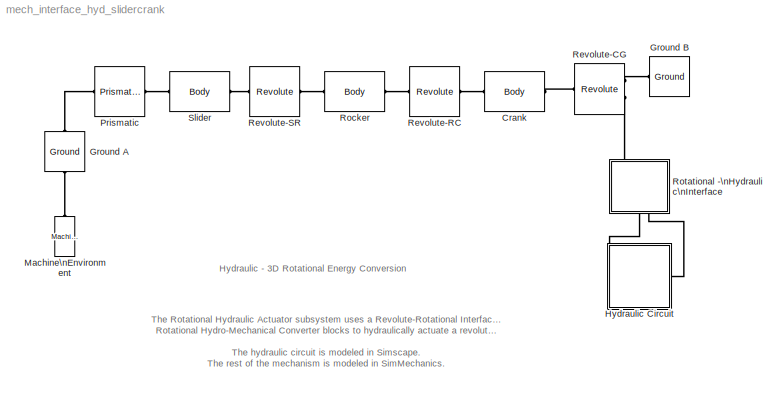
MODEL mech_interface_hyd_slidercrank
KIND model
CONFIG PostLoadFcn = hws = get_param(bdroot, 'modelworkspace');\n\nhws.assignin('sl_a', 0.5);\nhws.assignin('sl_b', 0.25);\nhws.assignin('sl_c', 0.25);\nhws.assignin('M_sl', 0.5);\nhws.evalin('I_sl = [1/3*M_sl*(sl_b^2 + sl_c^2) 0 0;   0 1/3*M_sl*(sl_a^2 + sl_c^2) 0;   0 0 1/3*M_sl*(sl_a^2 + sl_b^2)];')\n\nhws.assignin('rk_a', 0.5);\nhws.assignin('rk_b', 0.05);\nhws.assignin('rk_c', 0.05);\nhws.assignin('M_rk', 0.5);\n...<+384ch>
BLOCK [Reference] Crank  REF=mblibv1/Bodies/Body
  AttachedToCS = 1
  BodyColor = [0.5 0.5 0.5]
  CG = Left$CG$[cr_a 0 0]/2$CS1$CS1$ft$[0 0 0]$Euler X-Y-Z$deg$CS1$false
  CGPos = [cr_a 0 0]/2
  CGRot = [0 0 0]
  CS0Pos = []
  CS0Rot = []
  CS10Pos = []
  CS10Rot = []
  CS11Pos = []
  CS11Rot = []
  CS12Pos = []
  CS12Rot = []
  CS13Pos = []
  CS13Rot = []
  CS14Pos = []
  CS14Rot = []
  CS15Pos = []
  CS15Rot = []
  CS16Pos = []
  CS16Rot = []
  CS17Pos = []
  CS17Rot = []
  CS18Pos = []
  CS18Rot = []
  CS19Pos = []
  CS19Rot = []
  CS1Pos = [0 0 0]
  CS1Rot = [0 0 -pi/2]
  CS20Pos = []
  CS20Rot = []
  CS2Pos = [cr_a 0 0]
  CS2Rot = [0 0 0]
  CS3Pos = []
  CS3Rot = []
  CS4Pos = []
  CS4Rot = []
  CS5Pos = []
  CS5Rot = []
  CS6Pos = []
  CS6Rot = []
  CS7Pos = []
  CS7Rot = []
  CS8Pos = []
  CS8Rot = []
  CS9Pos = []
  CS9Rot = []
  ClassName = Body
  Density = 1
  DensityUnits = kg/m^3
  DensityUse = false
  DialogClass = MechanicalBodyBlock
  DialogController = MECH.DynMechDlgSource
  GraphicsMode = 1
  GraphicsObj = []
  Inertia = I_cr
  InertiaUnits = lbm*ft^2
  LConnTagsString = CS1
  LeftPortType = workingframe
  Mass = M_cr
  MassUnits = lbm
  PhysicalDomain = mechanical
  Ports = [0, 0, 0, 0, 0, 1, 1]
  RConnTagsString = CS2
  RightPortType = workingframe
  Shape = Cylinder
  ShapeDims = [1 1]
  ShapeUnits = m
  ShapeUse = false
  SourceBlock = mblibv1/Bodies/Body
  SourceType = Body
  SubClassName = Unknown
  WorkingFrames = Left$CS1$[0 0 0]$Adjoining$Adjoining$ft$[0 0 -pi/2]$Euler X-Y-Z$rad$Adjoining$true#Right$CS2$[cr_a 0 0]$CS1$CS1$ft$[0 0 0]$Euler X-Y-Z$deg$CS1$true
BLOCK [Reference] Ground A  REF=mblibv1/Bodies/Ground
  ClassName = Ground
  CoordPosition = [0 0 0]
  CoordPositionUnits = m
  DialogClass = GroundBlock
  DialogController = MECH.DynMechDlgSource
  FunctionWithSeparateData = off
  LeftPortType = env
  MachineId = [0 0]
  PhysicalDomain = Mechanical
  Ports = [0, 0, 0, 0, 0, 1, 1]
  RTWMemSecDataConstants = Inherit from model
  RTWMemSecDataInternal = Inherit from model
  RTWMemSecDataParameters = Inherit from model
  RTWMemSecFuncExecute = Inherit from model
  RTWMemSecFuncInitTerm = Inherit from model
  RightPortType = workingframe
  ShowEnvPort = on
  ShowPortLabels = FromPortIcon
  SourceBlock = mblibv1/Bodies/Ground
  SourceType = Ground
  StateVectorMgrId = -1
  SystemSampleTime = -1
  UserData = DataTag1
  UserDataPersistent = on
BLOCK [Reference] Ground B  REF=mblibv1/Bodies/Ground
  ClassName = Ground
  CoordPosition = [Lr*cos(pi/6)+Lc*cos(pi/3)+1/24 0 0]
  CoordPositionUnits = ft
  DialogClass = GroundBlock
  DialogController = MECH.DynMechDlgSource
  FunctionWithSeparateData = off
  LeftPortType = env
  MachineId = [0 0]
  PhysicalDomain = Mechanical
  Ports = [0, 0, 0, 0, 0, 0, 1]
  RTWMemSecDataConstants = Inherit from model
  RTWMemSecDataInternal = Inherit from model
  RTWMemSecDataParameters = Inherit from model
  RTWMemSecFuncExecute = Inherit from model
  RTWMemSecFuncInitTerm = Inherit from model
  RightPortType = workingframe
  ShowEnvPort = off
  ShowPortLabels = FromPortIcon
  SourceBlock = mblibv1/Bodies/Ground
  SourceType = Ground
  StateVectorMgrId = -1
  SystemSampleTime = -1
  UserData = DataTag2
  UserDataPersistent = on
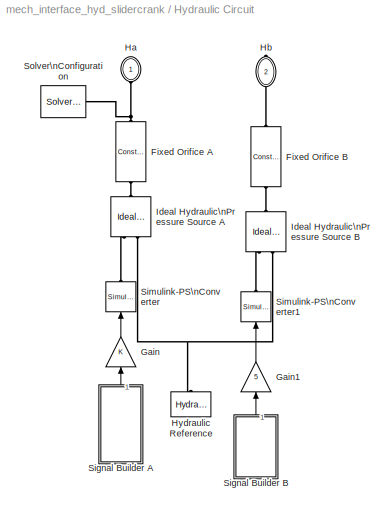
BLOCK [SubSystem] Hydraulic Circuit
  FunctionWithSeparateData = off
  MaskHideContents = off
  MinAlgLoopOccurrences = off
  Opaque = off
  Ports = [0, 0, 0, 0, 0, 1, 1]
  PropExecContextOutsideSubsystem = off
  RTWSystemCode = Auto
  RequestExecContextInheritance = off
BLOCK [Reference] Hydraulic Circuit/Fixed Orifice A  REF=fl_lib/Hydraulic/Hydraulic Elements/Constant Area\nOrifice
  C_d = 0.7
  C_d_unit = 1
  ClassName = orifice_fixed
  DialogController = NetworkEngine.DynNeDlgSource
  FunctionWithSeparateData = off
  LocalVarDescs = |Flow rate through the orifice (m^3/s)|Pressure drop across the orifice (Pa)|Reynolds number|Power (W)
  LocalVarLogging = [0 0 0 0]
  LocalVarNames = |flow_rate|pr_drop|Re|power
  Ports = [0, 0, 0, 0, 0, 1, 1]
  RTWMemSecDataConstants = Inherit from model
  RTWMemSecDataInternal = Inherit from model
  RTWMemSecDataParameters = Inherit from model
  RTWMemSecFuncExecute = Inherit from model
  RTWMemSecFuncInitTerm = Inherit from model
  Re_cr = 12
  Re_cr_unit = 1
  SchemaVersion = 1
  ShowPortLabels = FromPortIcon
  SourceBlock = fl_lib/Hydraulic/Hydraulic Elements/Constant Area\nOrifice
  SourceType = Constant Area\nOrifice
  SystemSampleTime = -1
  Tag = Factory Generic
  area = 1e-04
  area_unit = m^2
  flow_rate_Log = off
  power_Log = off
  pr_drop_Log = off
BLOCK [Reference] Hydraulic Circuit/Fixed Orifice B  REF=fl_lib/Hydraulic/Hydraulic Elements/Constant Area\nOrifice
  C_d = 0.7
  C_d_unit = 1
  ClassName = orifice_fixed
  DialogController = NetworkEngine.DynNeDlgSource
  FunctionWithSeparateData = off
  LocalVarDescs = |Flow rate through the orifice (m^3/s)|Pressure drop across the orifice (Pa)|Reynolds number|Power (W)
  LocalVarLogging = [0 0 0 0]
  LocalVarNames = |flow_rate|pr_drop|Re|power
  Ports = [0, 0, 0, 0, 0, 1, 1]
  RTWMemSecDataConstants = Inherit from model
  RTWMemSecDataInternal = Inherit from model
  RTWMemSecDataParameters = Inherit from model
  RTWMemSecFuncExecute = Inherit from model
  RTWMemSecFuncInitTerm = Inherit from model
  Re_cr = 12
  Re_cr_unit = 1
  SchemaVersion = 1
  ShowPortLabels = FromPortIcon
  SourceBlock = fl_lib/Hydraulic/Hydraulic Elements/Constant Area\nOrifice
  SourceType = Constant Area\nOrifice
  SystemSampleTime = -1
  Tag = Factory Generic
  area = 1e-04
  area_unit = m^2
  flow_rate_Log = off
  power_Log = off
  pr_drop_Log = off
BLOCK [Gain] Hydraulic Circuit/Gain
  OutDataType = sfix(16)
  OutDataTypeMode = Inherit via internal rule
  OutDataTypeStr = Inherit: Inherit via internal rule
  OutScaling = 2^0
  ParamDataTypeStr = Inherit: Inherit via internal rule
  ParameterDataType = sfix(16)
  ParameterDataTypeMode = Inherit via internal rule
  ParameterScaling = 2^0
  SaturateOnIntegerOverflow = off
BLOCK [Gain] Hydraulic Circuit/Gain1
  Gain = 5
  OutDataType = sfix(16)
  OutDataTypeMode = Inherit via internal rule
  OutDataTypeStr = Inherit: Inherit via internal rule
  OutScaling = 2^0
  ParamDataTypeStr = Inherit: Inherit via internal rule
  ParameterDataType = sfix(16)
  ParameterDataTypeMode = Inherit via internal rule
  ParameterScaling = 2^0
  SaturateOnIntegerOverflow = off
BLOCK [PMIOPort] Hydraulic Circuit/Ha
  Port = 1
  Side = Left
BLOCK [PMIOPort] Hydraulic Circuit/Hb
  Port = 2
  Side = Right
BLOCK [Reference] Hydraulic Circuit/Hydraulic Reference  REF=fl_lib/Hydraulic/Hydraulic Elements/Hydraulic Reference
  ClassName = hydro_reference
  DialogController = NetworkEngine.DynNeDlgSource
  FunctionWithSeparateData = off
  LocalVarLogging = []
  Ports = [0, 0, 0, 0, 0, 1]
  RTWMemSecDataConstants = Inherit from model
  RTWMemSecDataInternal = Inherit from model
  RTWMemSecDataParameters = Inherit from model
  RTWMemSecFuncExecute = Inherit from model
  RTWMemSecFuncInitTerm = Inherit from model
  SchemaVersion = 1
  ShowPortLabels = FromPortIcon
  SourceBlock = fl_lib/Hydraulic/Hydraulic Elements/Hydraulic Reference
  SourceType = Hydraulic Reference
  SystemSampleTime = -1
  Tag = Factory Generic
BLOCK [Reference] Hydraulic Circuit/Ideal Hydraulic\nPressure Source A  REF=fl_lib/Hydraulic/Hydraulic Sensors\nand Sources/Ideal Hydraulic\nPressure Source
  ClassName = pressure_src
  DialogController = NetworkEngine.DynNeDlgSource
  FunctionWithSeparateData = off
  LocalVarDescs = |Flow rate through the source (m^3/s)|Pressure differential across the source (Pa)|Source power (W)
  LocalVarLogging = [0 0 0]
  LocalVarNames = |flow_rate|pr_differential|power
  Ports = [0, 0, 0, 0, 0, 1, 2]
  RTWMemSecDataConstants = Inherit from model
  RTWMemSecDataInternal = Inherit from model
  RTWMemSecDataParameters = Inherit from model
  RTWMemSecFuncExecute = Inherit from model
  RTWMemSecFuncInitTerm = Inherit from model
  SchemaVersion = 1
  ShowPortLabels = FromPortIcon
  SourceBlock = fl_lib/Hydraulic/Hydraulic Sensors\nand Sources/Ideal Hydraulic\nPressure Source
  SourceType = Ideal Hydraulic\nPressure Source
  SystemSampleTime = -1
  Tag = Factory Generic
  flow_rate_Log = off
  power_Log = off
  pr_differential_Log = off
BLOCK [Reference] Hydraulic Circuit/Ideal Hydraulic\nPressure Source B  REF=fl_lib/Hydraulic/Hydraulic Sensors\nand Sources/Ideal Hydraulic\nPressure Source
  ClassName = pressure_src
  DialogController = NetworkEngine.DynNeDlgSource
  FunctionWithSeparateData = off
  LocalVarDescs = |Flow rate through the source (m^3/s)|Pressure differential across the source (Pa)|Source power (W)
  LocalVarLogging = [0 0 0]
  LocalVarNames = |flow_rate|pr_differential|power
  Ports = [0, 0, 0, 0, 0, 1, 2]
  RTWMemSecDataConstants = Inherit from model
  RTWMemSecDataInternal = Inherit from model
  RTWMemSecDataParameters = Inherit from model
  RTWMemSecFuncExecute = Inherit from model
  RTWMemSecFuncInitTerm = Inherit from model
  SchemaVersion = 1
  ShowPortLabels = FromPortIcon
  SourceBlock = fl_lib/Hydraulic/Hydraulic Sensors\nand Sources/Ideal Hydraulic\nPressure Source
  SourceType = Ideal Hydraulic\nPressure Source
  SystemSampleTime = -1
  Tag = Factory Generic
  flow_rate_Log = off
  power_Log = off
  pr_differential_Log = off
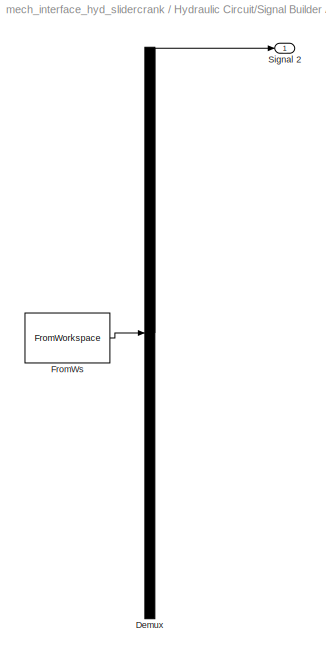
BLOCK [SubSystem] Hydraulic Circuit/Signal Builder A
  ClipboardFcn = sigbuilder_block('clipboard');
  CloseFcn = sigbuilder_block('close');
  CopyFcn = sigbuilder_block('copy');
  DeleteFcn = sigbuilder_block('delete');
  FunctionWithSeparateData = off
  LoadFcn = sigbuilder_block('load');
  MaskDescription = Sigbuilder GUI
  MaskDisplay = plot(0,0,100,100,[10,10,40,40,10],[80,20,20,80,80],[40,10],[50,50], [40,27,10],[65,72,56],[40,25,25,10],[28,28,43,43]);
  MaskHideContents = off
  MaskIconFrame = on
  MaskIconOpaque = off
  MaskIconRotate = port
  MaskIconUnits = autoscale
  MaskInitialization = if ~strcmp(get_param(bdroot(gcbh),'SimulationStatus'),'stopped') tuvar = sigbuilder_block('maskInit'); end
  MaskType = Sigbuilder block
  MinAlgLoopOccurrences = off
  ModelCloseFcn = sigbuilder_block('modelClose');
  NameChangeFcn = sigbuilder_block('namechange');
  Opaque = off
  OpenFcn = sigbuilder_block('open',[160.5 256.5 550.5 399.75 ]);
  Ports = [0, 1]
  PreSaveFcn = sigbuilder_block('preSave');
  PropExecContextOutsideSubsystem = off
  RTWSystemCode = Auto
  RequestExecContextInheritance = off
  StartFcn = sigbuilder_block('start');
  StopFcn = sigbuilder_block('stop');
  Tag = STV Subsys
BLOCK [Demux] Hydraulic Circuit/Signal Builder A/Demux
  Outputs = 1
  Ports = [1, 1]
  Tag = STV Demux
BLOCK [FromWorkspace] Hydraulic Circuit/Signal Builder A/FromWs
  SampleTime = 0
  SigBuilderData = DataTag3
  Tag = STV FromWs
  VariableName = tuvar
  VnvData = DataTag4
  ZeroCross = on
BLOCK [Outport] Hydraulic Circuit/Signal Builder A/Signal 2
  IconDisplay = Port number
  OutDataType = sfix(16)
  OutScaling = 2^0
  Tag = STV Outport
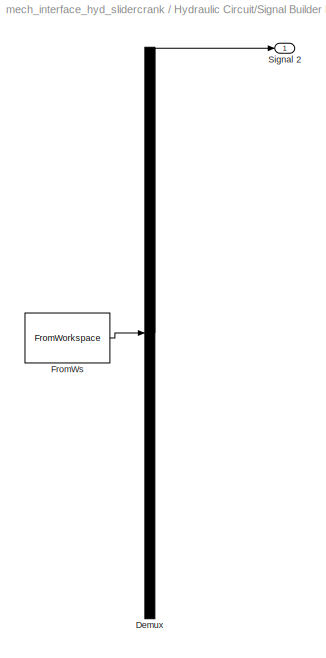
BLOCK [SubSystem] Hydraulic Circuit/Signal Builder B
  ClipboardFcn = sigbuilder_block('clipboard');
  CloseFcn = sigbuilder_block('close');
  CopyFcn = sigbuilder_block('copy');
  DeleteFcn = sigbuilder_block('delete');
  FunctionWithSeparateData = off
  LoadFcn = sigbuilder_block('load');
  MaskDescription = Sigbuilder GUI
  MaskDisplay = plot(0,0,100,100,[10,10,40,40,10],[80,20,20,80,80],[40,10],[50,50], [40,27,10],[65,72,56],[40,25,25,10],[28,28,43,43]);
  MaskHideContents = off
  MaskIconFrame = on
  MaskIconOpaque = off
  MaskIconRotate = port
  MaskIconUnits = autoscale
  MaskInitialization = if ~strcmp(get_param(bdroot(gcbh),'SimulationStatus'),'stopped') tuvar = sigbuilder_block('maskInit'); end
  MaskType = Sigbuilder block
  MinAlgLoopOccurrences = off
  ModelCloseFcn = sigbuilder_block('modelClose');
  NameChangeFcn = sigbuilder_block('namechange');
  Opaque = off
  OpenFcn = sigbuilder_block('open',[405 251.25 550.5 399.75 ]);
  Ports = [0, 1]
  PreSaveFcn = sigbuilder_block('preSave');
  PropExecContextOutsideSubsystem = off
  RTWSystemCode = Auto
  RequestExecContextInheritance = off
  StartFcn = sigbuilder_block('start');
  StopFcn = sigbuilder_block('stop');
  Tag = STV Subsys
BLOCK [Demux] Hydraulic Circuit/Signal Builder B/Demux
  Outputs = 1
  Ports = [1, 1]
  Tag = STV Demux
BLOCK [FromWorkspace] Hydraulic Circuit/Signal Builder B/FromWs
  SampleTime = 0
  SigBuilderData = DataTag5
  Tag = STV FromWs
  VariableName = tuvar
  VnvData = DataTag6
  ZeroCross = on
BLOCK [Outport] Hydraulic Circuit/Signal Builder B/Signal 2
  IconDisplay = Port number
  OutDataType = sfix(16)
  OutScaling = 2^0
  Tag = STV Outport
BLOCK [Reference] Hydraulic Circuit/Simulink-PS\nConverter  REF=nesl_utility/Simulink-PS\nConverter
  AffineConversion = off
  DialogController = NetworkEngine.DynNeUtilDlgSource
  FunctionWithSeparateData = off
  LeftPortType = input
  PhysicalDomain = network_engine_domain
  Ports = [1, 0, 0, 0, 0, 0, 1]
  RTWMemSecDataConstants = Inherit from model
  RTWMemSecDataInternal = Inherit from model
  RTWMemSecDataParameters = Inherit from model
  RTWMemSecFuncExecute = Inherit from model
  RTWMemSecFuncInitTerm = Inherit from model
  RightPortType = output
  ShowPortLabels = none
  SourceBlock = nesl_utility/Simulink-PS\nConverter
  SourceType = Simulink-PS\nConverter
  SubClassName = ps_input
  SystemSampleTime = -1
  Unit = bar
BLOCK [Reference] Hydraulic Circuit/Simulink-PS\nConverter1  REF=nesl_utility/Simulink-PS\nConverter
  AffineConversion = off
  DialogController = NetworkEngine.DynNeUtilDlgSource
  FunctionWithSeparateData = off
  LeftPortType = input
  PhysicalDomain = network_engine_domain
  Ports = [1, 0, 0, 0, 0, 0, 1]
  RTWMemSecDataConstants = Inherit from model
  RTWMemSecDataInternal = Inherit from model
  RTWMemSecDataParameters = Inherit from model
  RTWMemSecFuncExecute = Inherit from model
  RTWMemSecFuncInitTerm = Inherit from model
  RightPortType = output
  ShowPortLabels = none
  SourceBlock = nesl_utility/Simulink-PS\nConverter
  SourceType = Simulink-PS\nConverter
  SubClassName = ps_input
  SystemSampleTime = -1
  Unit = bar
BLOCK [Reference] Hydraulic Circuit/Solver\nConfiguration  REF=nesl_utility/Solver\nConfiguration
  Accelerate = off
  DialogController = NetworkEngine.DynNeUtilDlgSource
  DoDC = off
  DoFixedCost = off
  FunctionWithSeparateData = off
  LeftPortType = input
  LinearAlgebra = Sparse
  MaxModeIter = 2
  MaxNonlinIter = 12
  PhysicalDomain = network_engine_domain
  Ports = [0, 0, 0, 0, 0, 0, 1]
  Profile = off
  RTWMemSecDataConstants = Inherit from model
  RTWMemSecDataInternal = Inherit from model
  RTWMemSecDataParameters = Inherit from model
  RTWMemSecFuncExecute = Inherit from model
  RTWMemSecFuncInitTerm = Inherit from model
  ResidualTolerance = 1e-9
  RightPortType = generic
  ShowPortLabels = none
  SourceBlock = nesl_utility/Solver\nConfiguration
  SourceType = Solver\nConfiguration
  SubClassName = solver
  SystemSampleTime = -1
BLOCK [Reference] Machine\nEnvironment  REF=mblibv1/Bodies/Machine\nEnvironment
  AnalysisType = Forward dynamics
  AngularAssemblyTolerance = 1e-3
  AngularAssemblyToleranceUnits = rad
  ClassName = Environment
  ConstraintAbsTolerance = 1e-4
  ConstraintRelTolerance = 1e-4
  ConstraintSolverType = Stabilizing
  DialogController = MECH.DialogSource
  DialogTemplateClass = MECH.MachineEnvironment
  Dimensionality = Auto-detect
  FunctionWithSeparateData = off
  Gravity = [0 0 0]
  GravityAsSignal = off
  GravityUnits = m/s^2
  LinearAssemblyTolerance = 1e-3
  LinearAssemblyToleranceUnits = m
  PerturbationSize = 1e-5
  PhysicalDomain = Mechanical
  PortType = env
  Ports = [0, 0, 0, 0, 0, 0, 1]
  RTWMemSecDataConstants = Inherit from model
  RTWMemSecDataInternal = Inherit from model
  RTWMemSecDataParameters = Inherit from model
  RTWMemSecFuncExecute = Inherit from model
  RTWMemSecFuncInitTerm = Inherit from model
  RedundancyAnalysisTolerance = 1e-14
  RedundancyAnalysisToleranceType = Automatically select tolerance
  ShowPortLabels = FromPortIcon
  SourceBlock = mblibv1/Bodies/Machine\nEnvironment
  SourceType = Machine Environment
  StatePerturbationType = Fixed
  SyncWhenCopied = off
  SystemSampleTime = -1
  Tag = Factory ground
  UseRobustSingularityHandling = off
  VisualizeMachine = on
BLOCK [Reference] Prismatic  REF=mblibv1/Joints/Prismatic
  ClassName = Joint
  CutJoint = off
  DialogClass = JointBlock
  DialogController = MECH.DynMechDlgSource
  LConnTagsString = __newl0
  LeftPortType = blob
  MarkAsCut = off
  NumSAPorts = 0
  P1Axis = [1 0 0]
  PhysicalDomain = mechanical
  Ports = [0, 0, 0, 0, 0, 1, 1]
  PrimitiveProps = P1$Base$[1 0 0]$prismatic
  Primitives = prismatic
  RConnTagsString = __newr0
  RightPortType = blob
  SourceBlock = mblibv1/Joints/Prismatic
  SourceType = Prismatic
  SubClassName = Unknown
BLOCK [Reference] Revolute-CG  REF=mblibv1/Joints/Revolute
  ClassName = Joint
  CutJoint = off
  DialogClass = JointBlock
  DialogController = MECH.DynMechDlgSource
  LConnTagsString = __newl0|SA1
  LeftPortType = blob
  MarkAsCut = off
  NumSAPorts = 1
  PhysicalDomain = mechanical
  Ports = [0, 0, 0, 0, 0, 2, 1]
  PrimitiveProps = R1$World$[0 0 1]$revolute
  Primitives = prismatic
  R1Axis = [0 0 1]
  RConnTagsString = __newr0
  RightPortType = blob
  SourceBlock = mblibv1/Joints/Revolute
  SourceType = Revolute
  SubClassName = Unknown
BLOCK [Reference] Revolute-RC  REF=mblibv1/Joints/Revolute
  ClassName = Joint
  CutJoint = off
  DialogClass = JointBlock
  DialogController = MECH.DynMechDlgSource
  LConnTagsString = __newl0
  LeftPortType = blob
  MarkAsCut = off
  NumSAPorts = 0
  PhysicalDomain = mechanical
  Ports = [0, 0, 0, 0, 0, 1, 1]
  PrimitiveProps = R1$Base$[0 0 1]$revolute
  Primitives = prismatic
  R1Axis = [0 0 1]
  RConnTagsString = __newr0
  RightPortType = blob
  SourceBlock = mblibv1/Joints/Revolute
  SourceType = Revolute
  SubClassName = Unknown
BLOCK [Reference] Revolute-SR  REF=mblibv1/Joints/Revolute
  ClassName = Joint
  CutJoint = off
  DialogClass = JointBlock
  DialogController = MECH.DynMechDlgSource
  LConnTagsString = __newl0
  LeftPortType = blob
  MarkAsCut = off
  NumSAPorts = 0
  PhysicalDomain = mechanical
  Ports = [0, 0, 0, 0, 0, 1, 1]
  PrimitiveProps = R1$Base$[0 0 1]$revolute
  Primitives = prismatic
  R1Axis = [0 0 1]
  RConnTagsString = __newr0
  RightPortType = blob
  SourceBlock = mblibv1/Joints/Revolute
  SourceType = Revolute
  SubClassName = Unknown
BLOCK [Reference] Rocker  REF=mblibv1/Bodies/Body
  AttachedToCS = 1
  BodyColor = [0.5 0.5 0.5]
  CG = Left$CG$[rk_a 0 0]/2$CS1$CS1$ft$[0 0 0]$Euler X-Y-Z$deg$CS1$false
  CGPos = [rk_a 0 0]/2
  CGRot = [0 0 0]
  CS0Pos = []
  CS0Rot = []
  CS10Pos = []
  CS10Rot = []
  CS11Pos = []
  CS11Rot = []
  CS12Pos = []
  CS12Rot = []
  CS13Pos = []
  CS13Rot = []
  CS14Pos = []
  CS14Rot = []
  CS15Pos = []
  CS15Rot = []
  CS16Pos = []
  CS16Rot = []
  CS17Pos = []
  CS17Rot = []
  CS18Pos = []
  CS18Rot = []
  CS19Pos = []
  CS19Rot = []
  CS1Pos = [0 0 0]
  CS1Rot = [0 0 pi/6]
  CS20Pos = []
  CS20Rot = []
  CS2Pos = [rk_a 0 0]
  CS2Rot = [0 0 0]
  CS3Pos = []
  CS3Rot = []
  CS4Pos = []
  CS4Rot = []
  CS5Pos = []
  CS5Rot = []
  CS6Pos = []
  CS6Rot = []
  CS7Pos = []
  CS7Rot = []
  CS8Pos = []
  CS8Rot = []
  CS9Pos = []
  CS9Rot = []
  ClassName = Body
  Density = 1
  DensityUnits = kg/m^3
  DensityUse = false
  DialogClass = MechanicalBodyBlock
  DialogController = MECH.DynMechDlgSource
  GraphicsMode = 1
  GraphicsObj = []
  Inertia = I_rk
  InertiaUnits = lbm*ft^2
  LConnTagsString = CS1
  LeftPortType = workingframe
  Mass = M_rk
  MassUnits = lbm
  PhysicalDomain = mechanical
  Ports = [0, 0, 0, 0, 0, 1, 1]
  RConnTagsString = CS2
  RightPortType = workingframe
  Shape = Cylinder
  ShapeDims = [1 1]
  ShapeUnits = m
  ShapeUse = false
  SourceBlock = mblibv1/Bodies/Body
  SourceType = Body
  SubClassName = Unknown
  WorkingFrames = Left$CS1$[0 0 0]$Adjoining$Adjoining$ft$[0 0 pi/6]$Euler X-Y-Z$rad$Adjoining$true#Right$CS2$[rk_a 0 0]$CS1$CS1$ft$[0 0 0]$Euler X-Y-Z$deg$CS1$true
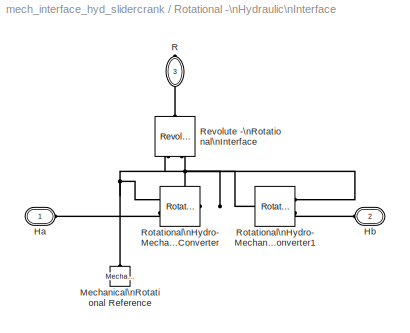
BLOCK [SubSystem] Rotational -\nHydraulic\nInterface
  FunctionWithSeparateData = off
  MaskHideContents = off
  MinAlgLoopOccurrences = off
  Opaque = off
  Ports = [0, 0, 0, 0, 0, 2, 1]
  PropExecContextOutsideSubsystem = off
  RTWSystemCode = Auto
  RequestExecContextInheritance = off
BLOCK [PMIOPort] Rotational -\nHydraulic\nInterface/Ha
  Port = 1
  Side = Left
  Tag = PMCPort
BLOCK [PMIOPort] Rotational -\nHydraulic\nInterface/Hb
  Port = 2
  Side = Left
  Tag = PMCPort
BLOCK [Reference] Rotational -\nHydraulic\nInterface/Mechanical\nRotational Reference  REF=fl_lib/Mechanical/Rotational Elements/Mechanical\nRotational Reference
  ClassName = reference_rot
  DialogController = NetworkEngine.DynNeDlgSource
  FunctionWithSeparateData = off
  LocalVarLogging = []
  Ports = [0, 0, 0, 0, 0, 1]
  RTWMemSecDataConstants = Inherit from model
  RTWMemSecDataInternal = Inherit from model
  RTWMemSecDataParameters = Inherit from model
  RTWMemSecFuncExecute = Inherit from model
  RTWMemSecFuncInitTerm = Inherit from model
  SchemaVersion = 1
  ShowPortLabels = FromPortIcon
  SourceBlock = fl_lib/Mechanical/Rotational Elements/Mechanical\nRotational Reference
  SourceType = Mechanical\nRotational Reference
  SystemSampleTime = -1
BLOCK [PMIOPort] Rotational -\nHydraulic\nInterface/R
  Port = 3
  Side = Right
  Tag = PMCPort
BLOCK [Reference] Rotational -\nHydraulic\nInterface/Revolute -\nRotational\nInterface  REF=mblibv1/Interface \nElements/Revolute -\nRotational\nInterface
  ClassName = RevoluteRotationalInterface
  DialogClass = RevoluteRotationalInterface
  DialogController = MECH.DynMechDlgSource
  FunctionWithSeparateData = off
  Ports = [0, 0, 0, 0, 0, 2, 1]
  Primitive = R1
  RTWMemSecDataConstants = Inherit from model
  RTWMemSecDataInternal = Inherit from model
  RTWMemSecDataParameters = Inherit from model
  RTWMemSecFuncExecute = Inherit from model
  RTWMemSecFuncInitTerm = Inherit from model
  ShowPortLabels = FromPortIcon
  SourceBlock = mblibv1/Interface \nElements/Revolute -\nRotational\nInterface
  SourceType = Revolute - Rotational Interface
  SystemSampleTime = -1
BLOCK [Reference] Rotational -\nHydraulic\nInterface/Rotational\nHydro-Mechanical\nConverter  REF=fl_lib/Hydraulic/Hydraulic Elements/Rotational\nHydro-Mechanical\nConverter
  ClassName = converter_rot
  D = 1.2e-04
  D_unit = m^3/rad
  DialogController = NetworkEngine.DynNeDlgSource
  FunctionWithSeparateData = off
  LocalVarDescs = |Flow rate into the chamber (m^3/s)|Pressure at the inlet (Pa)|Output torque (N*m)|Shaft angular velocity (rad/s)|Power (W)
  LocalVarLogging = [0 0 0 0 0]
  LocalVarNames = |flow_rate|pressure|torque|ang_velocity|power
  Ports = [0, 0, 0, 0, 0, 2, 1]
  RTWMemSecDataConstants = Inherit from model
  RTWMemSecDataInternal = Inherit from model
  RTWMemSecDataParameters = Inherit from model
  RTWMemSecFuncExecute = Inherit from model
  RTWMemSecFuncInitTerm = Inherit from model
  SchemaVersion = 1
  ShowPortLabels = FromPortIcon
  SourceBlock = fl_lib/Hydraulic/Hydraulic Elements/Rotational\nHydro-Mechanical\nConverter
  SourceType = Rotational\nHydro-Mechanical\nConverter
  SystemSampleTime = -1
  ang_velocity_Log = off
  flow_rate_Log = off
  or = 1
  or_unit = 1
  power_Log = off
  pressure_Log = off
  torque_Log = off
BLOCK [Reference] Rotational -\nHydraulic\nInterface/Rotational\nHydro-Mechanical\nConverter1  REF=fl_lib/Hydraulic/Hydraulic Elements/Rotational\nHydro-Mechanical\nConverter
  ClassName = converter_rot
  D = 1.2e-04
  D_unit = m^3/rad
  DialogController = NetworkEngine.DynNeDlgSource
  FunctionWithSeparateData = off
  LocalVarDescs = |Flow rate into the chamber (m^3/s)|Pressure at the inlet (Pa)|Output torque (N*m)|Shaft angular velocity (rad/s)|Power (W)
  LocalVarLogging = [0 0 0 0 0]
  LocalVarNames = |flow_rate|pressure|torque|ang_velocity|power
  Ports = [0, 0, 0, 0, 0, 2, 1]
  RTWMemSecDataConstants = Inherit from model
  RTWMemSecDataInternal = Inherit from model
  RTWMemSecDataParameters = Inherit from model
  RTWMemSecFuncExecute = Inherit from model
  RTWMemSecFuncInitTerm = Inherit from model
  SchemaVersion = 1
  ShowPortLabels = FromPortIcon
  SourceBlock = fl_lib/Hydraulic/Hydraulic Elements/Rotational\nHydro-Mechanical\nConverter
  SourceType = Rotational\nHydro-Mechanical\nConverter
  SystemSampleTime = -1
  ang_velocity_Log = off
  flow_rate_Log = off
  or = 2
  or_unit = 1
  power_Log = off
  pressure_Log = off
  torque_Log = off
BLOCK [Reference] Slider  REF=mblibv1/Bodies/Body
  AttachedToCS = 1
  BodyColor = [0.5 0.5 0.5]
  CG = Right$CG$[sl_a 0 0]$CS1$CS1$in$[0 0 0]$Euler X-Y-Z$deg$WORLD$true
  CGPos = [sl_a 0 0]
  CGRot = [0 0 0]
  CS0Pos = []
  CS0Rot = []
  CS10Pos = []
  CS10Rot = []
  CS11Pos = []
  CS11Rot = []
  CS12Pos = []
  CS12Rot = []
  CS13Pos = []
  CS13Rot = []
  CS14Pos = []
  CS14Rot = []
  CS15Pos = []
  CS15Rot = []
  CS16Pos = []
  CS16Rot = []
  CS17Pos = []
  CS17Rot = []
  CS18Pos = []
  CS18Rot = []
  CS19Pos = []
  CS19Rot = []
  CS1Pos = [0 0 0]
  CS1Rot = [0 0 0]
  CS20Pos = []
  CS20Rot = []
  CS2Pos = [2*sl_a 0 0]
  CS2Rot = [0 0 0]
  CS3Pos = [0 -sl_b 0]
  CS3Rot = [0 0 0]
  CS4Pos = [0 sl_b 0]
  CS4Rot = [0 0 0]
  CS5Pos = [2*sl_a -sl_b 0]
  CS5Rot = [0 0 0]
  CS6Pos = [2*sl_a sl_b 0]
  CS6Rot = [0 0 0]
  CS7Pos = []
  CS7Rot = []
  CS8Pos = []
  CS8Rot = []
  CS9Pos = []
  CS9Rot = []
  ClassName = Body
  Density = 1
  DensityUnits = kg/m^3
  DensityUse = false
  DialogClass = MechanicalBodyBlock
  DialogController = MECH.DynMechDlgSource
  GraphicsMode = 1
  GraphicsObj = []
  Inertia = I_sl
  InertiaUnits = lbm*in^2
  LConnTagsString = CS1
  LeftPortType = workingframe
  Mass = M_sl
  MassUnits = lbm
  PhysicalDomain = mechanical
  Ports = [0, 0, 0, 0, 0, 1, 1]
  RConnTagsString = CG
  RightPortType = workingframe
  Shape = Cylinder
  ShapeDims = [1 1]
  ShapeUnits = m
  ShapeUse = false
  SourceBlock = mblibv1/Bodies/Body
  SourceType = Body
  SubClassName = Unknown
  WorkingFrames = Left$CS1$[0 0 0]$Adjoining$Adjoining$in$[0 0 0]$Euler X-Y-Z$deg$WORLD$true#Left$CS4$[0 sl_b 0]$CS1$CS1$in$[0 0 0]$Euler X-Y-Z$deg$WORLD$false#Right$CS6$[2*sl_a sl_b 0]$CS1$CS1$in$[0 0 0]$Euler X-Y-Z$deg$WORLD$false#Right$CS2$[2*sl_a 0 0]$CS1$CS1$in$[0 0 0]$Euler X-Y-Z$deg$WORLD$false#Right$CS5$[2*sl_a -sl_b 0]$CS1$CS1$in$[0 0 0]$Euler X-Y-Z$deg$WORLD$false#Left$CS3$[0 -sl_b 0]$CS1$CS1$in$[0 0 0]$E...<+26ch>
ANNOTATION (root): Hydraulic - 3D Rotational Energy Conversion
ANNOTATION (root): The Rotational Hydraulic Actuator subsystem uses a Revolute-Rotational Interface block and \nRotational Hydro-Mechanical Converter blocks to hydraulically actuate a revolute joint.\n\nThe hydraulic circuit is modeled in Simscape.\nThe rest of the mechanism is modeled in SimMechanics.
LINE Hydraulic Circuit/Gain1:1 -> Hydraulic Circuit/Simulink-PS\nConverter1:1
LINE Hydraulic Circuit/Gain:1 -> Hydraulic Circuit/Simulink-PS\nConverter:1
LINE Hydraulic Circuit/Signal Builder A/Demux:1 -> Hydraulic Circuit/Signal Builder A/Signal 2:1
LINE Hydraulic Circuit/Signal Builder A/FromWs:1 -> Hydraulic Circuit/Signal Builder A/Demux:1
LINE Hydraulic Circuit/Signal Builder A:1 -> Hydraulic Circuit/Gain:1
LINE Hydraulic Circuit/Signal Builder B/Demux:1 -> Hydraulic Circuit/Signal Builder B/Signal 2:1
LINE Hydraulic Circuit/Signal Builder B/FromWs:1 -> Hydraulic Circuit/Signal Builder B/Demux:1
LINE Hydraulic Circuit/Signal Builder B:1 -> Hydraulic Circuit/Gain1:1
PLINE Crank:LConn1 -- Revolute-RC:RConn1
PLINE Crank:RConn1 -- Revolute-CG:RConn1
PLINE Ground A:LConn1 -- Machine\nEnvironment:RConn1
PLINE Ground A:RConn1 -- Prismatic:LConn1
PLINE Ground B:RConn1 -- Revolute-CG:LConn1
PLINE Hydraulic Circuit/Fixed Orifice A:LConn1 -- Hydraulic Circuit/Ideal Hydraulic\nPressure Source A:LConn1
PNET net1: Hydraulic Circuit/Fixed Orifice A:RConn1 -- Hydraulic Circuit/Ha:RConn1 -- Hydraulic Circuit/Solver\nConfiguration:RConn1
PLINE Hydraulic Circuit/Fixed Orifice B:LConn1 -- Hydraulic Circuit/Ideal Hydraulic\nPressure Source B:LConn1
PLINE Hydraulic Circuit/Fixed Orifice B:RConn1 -- Hydraulic Circuit/Hb:RConn1
PNET net2: Hydraulic Circuit/Hydraulic Reference:LConn1 -- Hydraulic Circuit/Ideal Hydraulic\nPressure Source A:RConn2 -- Hydraulic Circuit/Ideal Hydraulic\nPressure Source B:RConn2
PLINE Hydraulic Circuit/Ideal Hydraulic\nPressure Source A:RConn1 -- Hydraulic Circuit/Simulink-PS\nConverter:RConn1
PLINE Hydraulic Circuit/Ideal Hydraulic\nPressure Source B:RConn1 -- Hydraulic Circuit/Simulink-PS\nConverter1:RConn1
PLINE Hydraulic Circuit:LConn1 -- Rotational -\nHydraulic\nInterface:LConn1
PLINE Hydraulic Circuit:RConn1 -- Rotational -\nHydraulic\nInterface:LConn2
PLINE Prismatic:RConn1 -- Slider:LConn1
PLINE Revolute-CG:LConn2 -- Rotational -\nHydraulic\nInterface:RConn1
PLINE Revolute-RC:LConn1 -- Rocker:RConn1
PLINE Revolute-SR:LConn1 -- Slider:RConn1
PLINE Revolute-SR:RConn1 -- Rocker:LConn1
PLINE Rotational -\nHydraulic\nInterface/Ha:RConn1 -- Rotational -\nHydraulic\nInterface/Rotational\nHydro-Mechanical\nConverter:LConn2
PLINE Rotational -\nHydraulic\nInterface/Hb:RConn1 -- Rotational -\nHydraulic\nInterface/Rotational\nHydro-Mechanical\nConverter1:LConn2
PNET net3: Rotational -\nHydraulic\nInterface/Mechanical\nRotational Reference:LConn1 -- Rotational -\nHydraulic\nInterface/Revolute -\nRotational\nInterface:LConn1 -- Rotational -\nHydraulic\nInterface/Rotational\nHydro-Mechanical\nConverter1:LConn1 -- Rotational -\nHydraulic\nInterface/Rotational\nHydro-Mechanical\nConverter:LConn1
PLINE Rotational -\nHydraulic\nInterface/R:RConn1 -- Rotational -\nHydraulic\nInterface/Revolute -\nRotational\nInterface:RConn1
PNET net4: Rotational -\nHydraulic\nInterface/Revolute -\nRotational\nInterface:LConn2 -- Rotational -\nHydraulic\nInterface/Rotational\nHydro-Mechanical\nConverter1:RConn1 -- Rotational -\nHydraulic\nInterface/Rotational\nHydro-Mechanical\nConverter:RConn1
note: PNET lines group multi-terminal physical nets as a canonical sorted terminal list (undirected conserving connections); 2-terminal nets keep the pairwise PLINE form
